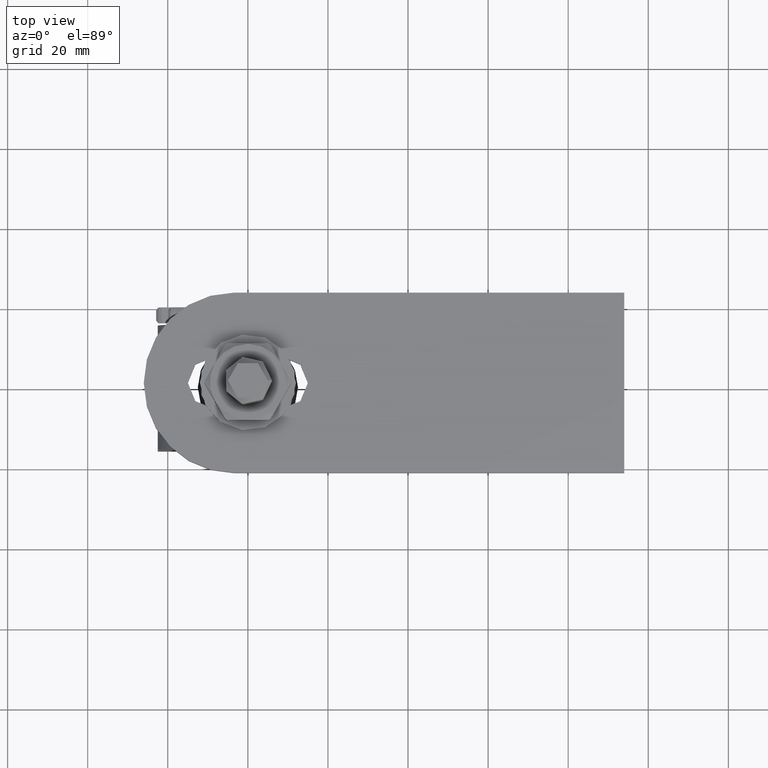
[diagram: clean part render]
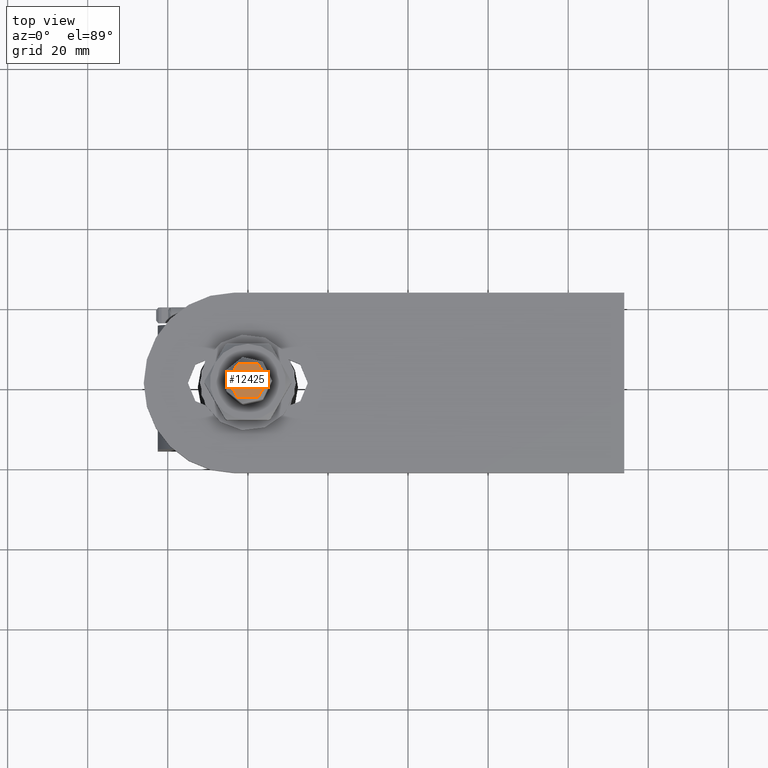
[diagram: same view with one face highlighted and labeled with its STEP entity id]
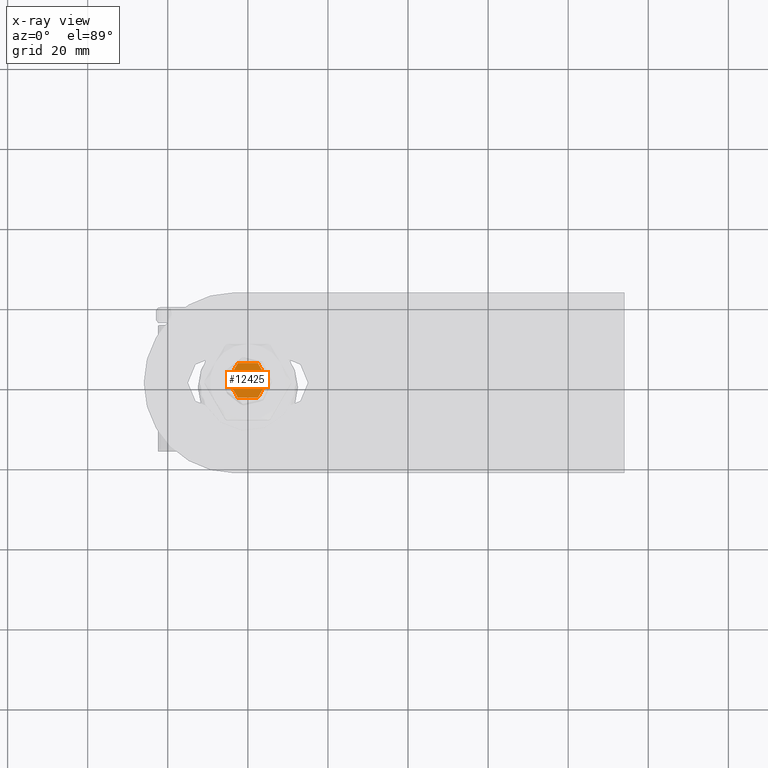
[diagram: x-ray of the same camera — body ghosted, the highlighted face saturated]
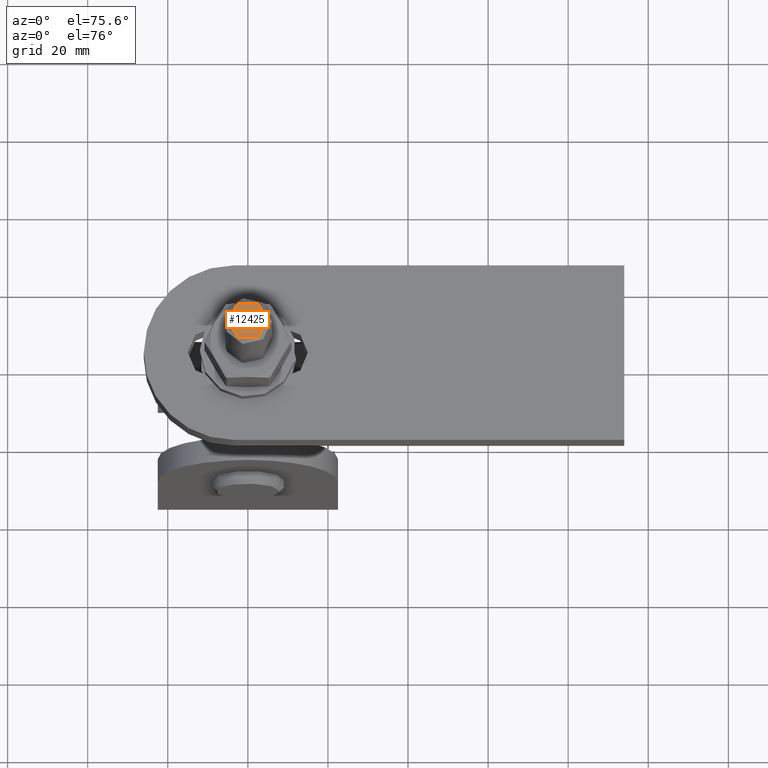
[diagram: same view with one face highlighted and labeled with its STEP entity id]
A machine part, top view. The second image highlights one B-rep face of the part: STEP entity #12425.
The next image is the same camera in x-ray: the body ghosted, the highlighted face saturated — about 0% of this face is hidden behind the body in this view.
A second angle (auxiliary view) of the same face is appended — the face is thin or edge-on in the first view.
In plain terms, the highlighted planar face has unit normal (0, 0, 1).
Its self-contained STEP definition (entity closure, byte-faithful):
#903 = AXIS2_PLACEMENT_3D ( 'NONE', #11481, #16889, #3389 ) ;
#3389 = DIRECTION ( 'NONE',  ( 1.000000000000000000, 0.000000000000000000, 0.000000000000000000 ) ) ;
#4964 = VERTEX_POINT ( 'NONE', #13373 ) ;
#5592 = ORIENTED_EDGE ( 'NONE', *, *, #11885, .T. ) ;
#6069 = AXIS2_PLACEMENT_3D ( 'NONE', #7714, #14547, #15919 ) ;
#6588 = CIRCLE ( 'NONE', #903, 4.999999999999990230 ) ;
#7714 = CARTESIAN_POINT ( 'NONE',  ( 0.000000000000000000, 0.000000000000000000, 100.0000000000000000 ) ) ;
#11481 = CARTESIAN_POINT ( 'NONE',  ( 0.000000000000000000, 0.000000000000000000, 100.0000000000000000 ) ) ;
#11885 = EDGE_CURVE ( 'NONE', #4964, #4964, #6588, .T. ) ;
#12425 = ADVANCED_FACE ( 'NONE', ( #17503 ), #15794, .T. ) ;
#13373 = CARTESIAN_POINT ( 'NONE',  ( 4.999999999999990230, 0.000000000000000000, 100.0000000000000000 ) ) ;
#14547 = DIRECTION ( 'NONE',  ( 0.000000000000000000, 0.000000000000000000, 1.000000000000000000 ) ) ;
#15771 = EDGE_LOOP ( 'NONE', ( #5592 ) ) ;
#15794 = PLANE ( 'NONE',  #6069 ) ;
#15919 = DIRECTION ( 'NONE',  ( 1.000000000000000000, 0.000000000000000000, -0.000000000000000000 ) ) ;
#16889 = DIRECTION ( 'NONE',  ( 0.000000000000000000, 0.000000000000000000, 1.000000000000000000 ) ) ;
#17503 = FACE_OUTER_BOUND ( 'NONE', #15771, .T. ) ;